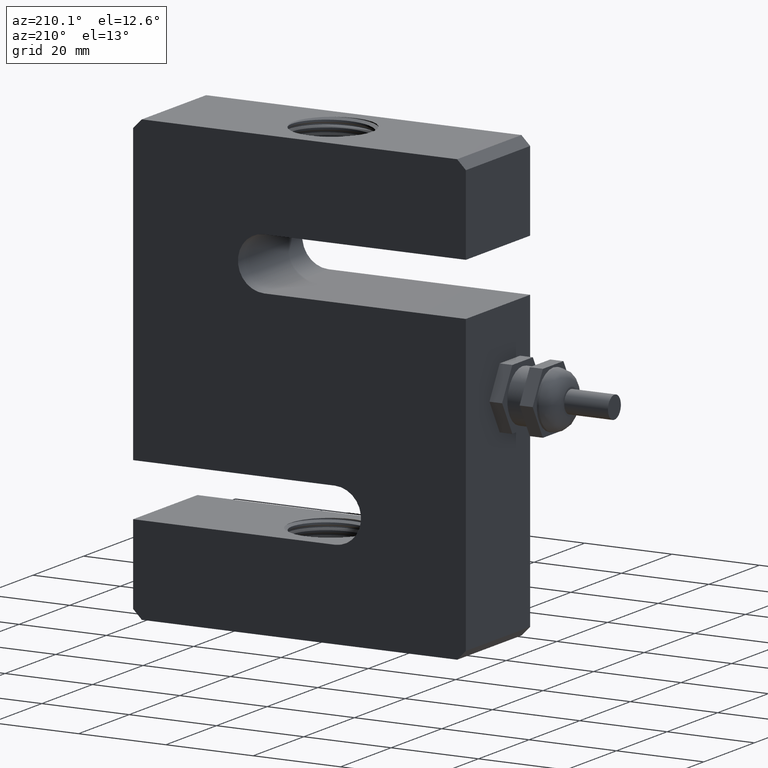
[diagram: clean part render]
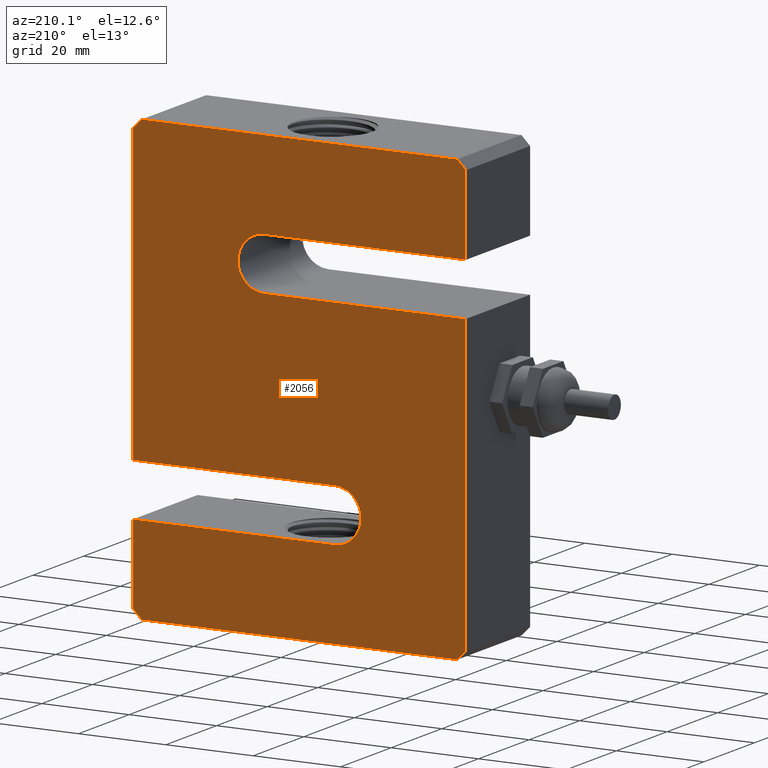
[diagram: same view with one face highlighted and labeled with its STEP entity id]
A machine part, auxiliary view. The second image highlights one B-rep face of the part: STEP entity #2056.
In plain terms, the highlighted planar face has unit normal (0, 1, 0).
Its self-contained STEP definition (entity closure, byte-faithful):
#189=PLANE('',#2221);
#294=FACE_OUTER_BOUND('',#418,.T.);
#418=EDGE_LOOP('',(#1633,#1634,#1635,#1636,#1637,#1638,#1639,#1640,#1641,
#1642,#1643,#1644,#1645,#1646,#1647,#1648));
#548=LINE('',#5886,#694);
#549=LINE('',#5888,#695);
#550=LINE('',#5890,#696);
#551=LINE('',#5892,#697);
#552=LINE('',#5894,#698);
#553=LINE('',#5898,#699);
#554=LINE('',#5900,#700);
#555=LINE('',#5902,#701);
#556=LINE('',#5904,#702);
#557=LINE('',#5906,#703);
#558=LINE('',#5908,#704);
#559=LINE('',#5910,#705);
#560=LINE('',#5914,#706);
#561=LINE('',#5915,#707);
#694=VECTOR('',#2591,10.);
#695=VECTOR('',#2592,10.);
#696=VECTOR('',#2593,10.);
#697=VECTOR('',#2594,10.);
#698=VECTOR('',#2595,10.);
#699=VECTOR('',#2598,10.);
#700=VECTOR('',#2599,10.);
#701=VECTOR('',#2600,10.);
#702=VECTOR('',#2601,10.);
#703=VECTOR('',#2602,10.);
#704=VECTOR('',#2603,10.);
#705=VECTOR('',#2604,10.);
#706=VECTOR('',#2607,10.);
#707=VECTOR('',#2608,10.);
#773=CIRCLE('',#2222,6.);
#774=CIRCLE('',#2223,6.);
#947=VERTEX_POINT('',#5884);
#948=VERTEX_POINT('',#5885);
#949=VERTEX_POINT('',#5887);
#950=VERTEX_POINT('',#5889);
#951=VERTEX_POINT('',#5891);
#952=VERTEX_POINT('',#5893);
#953=VERTEX_POINT('',#5895);
#954=VERTEX_POINT('',#5897);
#955=VERTEX_POINT('',#5899);
#956=VERTEX_POINT('',#5901);
#957=VERTEX_POINT('',#5903);
#958=VERTEX_POINT('',#5905);
#959=VERTEX_POINT('',#5907);
#960=VERTEX_POINT('',#5909);
#961=VERTEX_POINT('',#5911);
#962=VERTEX_POINT('',#5913);
#1217=EDGE_CURVE('',#947,#948,#548,.T.);
#1218=EDGE_CURVE('',#947,#949,#549,.T.);
#1219=EDGE_CURVE('',#950,#949,#550,.T.);
#1220=EDGE_CURVE('',#950,#951,#551,.T.);
#1221=EDGE_CURVE('',#951,#952,#552,.T.);
#1222=EDGE_CURVE('',#952,#953,#773,.T.);
#1223=EDGE_CURVE('',#953,#954,#553,.T.);
#1224=EDGE_CURVE('',#954,#955,#554,.T.);
#1225=EDGE_CURVE('',#956,#955,#555,.T.);
#1226=EDGE_CURVE('',#956,#957,#556,.T.);
#1227=EDGE_CURVE('',#958,#957,#557,.T.);
#1228=EDGE_CURVE('',#958,#959,#558,.T.);
#1229=EDGE_CURVE('',#959,#960,#559,.T.);
#1230=EDGE_CURVE('',#960,#961,#774,.T.);
#1231=EDGE_CURVE('',#961,#962,#560,.T.);
#1232=EDGE_CURVE('',#962,#948,#561,.T.);
#1633=ORIENTED_EDGE('',*,*,#1217,.F.);
#1634=ORIENTED_EDGE('',*,*,#1218,.T.);
#1635=ORIENTED_EDGE('',*,*,#1219,.F.);
#1636=ORIENTED_EDGE('',*,*,#1220,.T.);
#1637=ORIENTED_EDGE('',*,*,#1221,.T.);
#1638=ORIENTED_EDGE('',*,*,#1222,.T.);
#1639=ORIENTED_EDGE('',*,*,#1223,.T.);
#1640=ORIENTED_EDGE('',*,*,#1224,.T.);
#1641=ORIENTED_EDGE('',*,*,#1225,.F.);
#1642=ORIENTED_EDGE('',*,*,#1226,.T.);
#1643=ORIENTED_EDGE('',*,*,#1227,.F.);
#1644=ORIENTED_EDGE('',*,*,#1228,.T.);
#1645=ORIENTED_EDGE('',*,*,#1229,.T.);
#1646=ORIENTED_EDGE('',*,*,#1230,.T.);
#1647=ORIENTED_EDGE('',*,*,#1231,.T.);
#1648=ORIENTED_EDGE('',*,*,#1232,.T.);
#2056=ADVANCED_FACE('',(#294),#189,.T.);
#2221=AXIS2_PLACEMENT_3D('',#5883,#2589,#2590);
#2222=AXIS2_PLACEMENT_3D('',#5896,#2596,#2597);
#2223=AXIS2_PLACEMENT_3D('',#5912,#2605,#2606);
#2589=DIRECTION('center_axis',(0.,1.,0.));
#2590=DIRECTION('ref_axis',(1.,0.,0.));
#2591=DIRECTION('',(-0.707106781186548,0.,-0.707106781186548));
#2592=DIRECTION('',(1.,0.,0.));
#2593=DIRECTION('',(-0.707106781186548,0.,0.707106781186548));
#2594=DIRECTION('',(8.74191357972564E-17,0.,-1.));
#2595=DIRECTION('',(-1.,0.,0.));
#2596=DIRECTION('center_axis',(0.,-1.,0.));
#2597=DIRECTION('ref_axis',(0.,0.,-1.));
#2598=DIRECTION('',(1.,0.,0.));
#2599=DIRECTION('',(8.74191357972564E-17,0.,-1.));
#2600=DIRECTION('',(0.707106781186548,0.,0.707106781186548));
#2601=DIRECTION('',(-1.,0.,0.));
#2602=DIRECTION('',(0.707106781186548,0.,-0.707106781186548));
#2603=DIRECTION('',(8.74191357972564E-17,0.,1.));
#2604=DIRECTION('',(1.,0.,0.));
#2605=DIRECTION('center_axis',(0.,-1.,0.));
#2606=DIRECTION('ref_axis',(0.,0.,1.));
#2607=DIRECTION('',(-1.,0.,0.));
#2608=DIRECTION('',(8.74191357972564E-17,0.,1.));
#5883=CARTESIAN_POINT('Origin',(1.33226762955019E-14,12.7,8.88178419700125E-15));
#5884=CARTESIAN_POINT('',(-36.1,12.7,50.8));
#5885=CARTESIAN_POINT('',(-38.1,12.7,48.8));
#5886=CARTESIAN_POINT('',(-40.275,12.7,46.625));
#5887=CARTESIAN_POINT('',(36.1,12.7,50.8));
#5888=CARTESIAN_POINT('',(38.1,12.7,50.8));
#5889=CARTESIAN_POINT('',(38.1,12.7,48.8));
#5890=CARTESIAN_POINT('',(40.275,12.7,46.625));
#5891=CARTESIAN_POINT('',(38.1,12.7,-18.6));
#5892=CARTESIAN_POINT('',(38.1,12.7,-50.8));
#5893=CARTESIAN_POINT('',(-8.09999999999998,12.7,-18.6));
#5894=CARTESIAN_POINT('',(38.1,12.7,-18.6));
#5895=CARTESIAN_POINT('',(-8.09999999999998,12.7,-30.6));
#5896=CARTESIAN_POINT('Origin',(-8.09999999999998,12.7,-24.6));
#5897=CARTESIAN_POINT('',(38.1,12.7,-30.6));
#5898=CARTESIAN_POINT('',(38.1,12.7,-30.6));
#5899=CARTESIAN_POINT('',(38.1,12.7,-48.8));
#5900=CARTESIAN_POINT('',(38.1,12.7,-50.8));
#5901=CARTESIAN_POINT('',(36.1,12.7,-50.8));
#5902=CARTESIAN_POINT('',(40.275,12.7,-46.625));
#5903=CARTESIAN_POINT('',(-36.1,12.7,-50.8));
#5904=CARTESIAN_POINT('',(-38.1,12.7,-50.8));
#5905=CARTESIAN_POINT('',(-38.1,12.7,-48.8));
#5906=CARTESIAN_POINT('',(-40.275,12.7,-46.625));
#5907=CARTESIAN_POINT('',(-38.1,12.7,18.6));
#5908=CARTESIAN_POINT('',(-38.1,12.7,50.8));
#5909=CARTESIAN_POINT('',(8.10000000000002,12.7,18.6));
#5910=CARTESIAN_POINT('',(-38.1,12.7,18.6));
#5911=CARTESIAN_POINT('',(8.10000000000001,12.7,30.6));
#5912=CARTESIAN_POINT('Origin',(8.10000000000001,12.7,24.6));
#5913=CARTESIAN_POINT('',(-38.1,12.7,30.6));
#5914=CARTESIAN_POINT('',(-38.1,12.7,30.6));
#5915=CARTESIAN_POINT('',(-38.1,12.7,50.8));